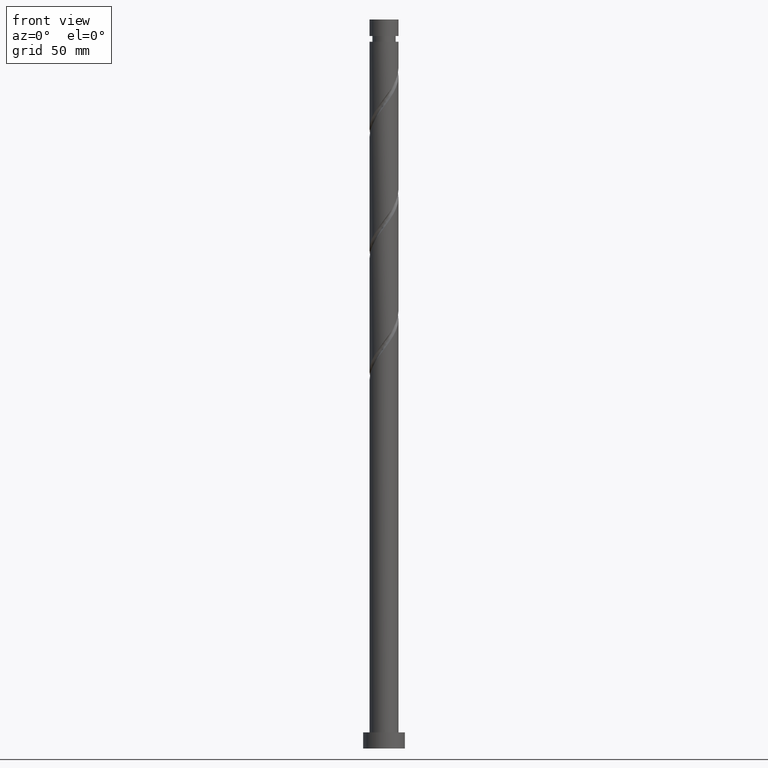
[diagram: clean part render]
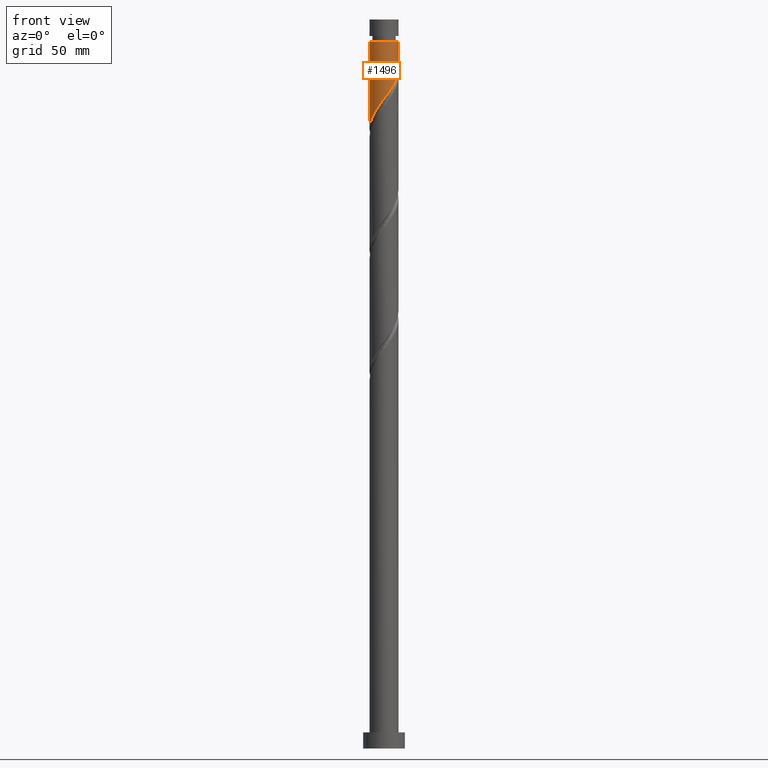
[diagram: same view with one face highlighted and labeled with its STEP entity id]
A machine part, front view. The second image highlights one B-rep face of the part: STEP entity #1496.
In plain terms, the highlighted cylindrical surface (edge-blend (fillet) strip) has radius 6.25 mm, axis along (-0, -0, -1).
Its self-contained STEP definition (entity closure, byte-faithful):
#9 = CARTESIAN_POINT ( 'NONE',  ( -6.058070402885839201, -1.536972021111190578, 269.7550190924107483 ) ) ;
#16 = VECTOR ( 'NONE', #655, 1000.000000000000000 ) ;
#24 = DIRECTION ( 'NONE',  ( -0.000000000000000000, -0.000000000000000000, -1.000000000000000000 ) ) ;
#26 = CARTESIAN_POINT ( 'NONE',  ( 6.250000000000000000, -1.343319616937364458E-15, 293.9295361703167941 ) ) ;
#33 = EDGE_CURVE ( 'NONE', #1629, #393, #1642, .T. ) ;
#127 = CARTESIAN_POINT ( 'NONE',  ( 6.250000000000000888, -0.6281486345370141944, 293.0912650913531365 ) ) ;
#152 = EDGE_CURVE ( 'NONE', #918, #1629, #1237, .T. ) ;
#167 = CARTESIAN_POINT ( 'NONE',  ( 5.984864800371902049, -1.933856053271458597, 291.3175190924106914 ) ) ;
#174 = EDGE_CURVE ( 'NONE', #918, #1806, #1099, .T. ) ;
#204 = CYLINDRICAL_SURFACE ( 'NONE', #1668, 6.250000000000000000 ) ;
#225 = ORIENTED_EDGE ( 'NONE', *, *, #174, .T. ) ;
#251 = AXIS2_PLACEMENT_3D ( 'NONE', #330, #639, #808 ) ;
#273 = CARTESIAN_POINT ( 'NONE',  ( 6.249999999999974243, 7.654042494670941829E-16, 305.3800190924107483 ) ) ;
#276 = CARTESIAN_POINT ( 'NONE',  ( -6.250000000000000888, 7.089742422724978263E-16, 267.6795361703168510 ) ) ;
#282 = CARTESIAN_POINT ( 'NONE',  ( 3.473416191767959571, -5.243451713544184045, 285.6925190924106346 ) ) ;
#303 = CARTESIAN_POINT ( 'NONE',  ( -6.250000000000000000, 7.089742422724978263E-16, 267.6795361703168510 ) ) ;
#309 = CARTESIAN_POINT ( 'NONE',  ( 6.250000000000000888, -1.343319616937364458E-15, 293.9295361703167941 ) ) ;
#330 = CARTESIAN_POINT ( 'NONE',  ( 0.000000000000000000, 0.000000000000000000, 305.3800190924107483 ) ) ;
#370 = EDGE_CURVE ( 'NONE', #1806, #393, #818, .T. ) ;
#393 = VERTEX_POINT ( 'NONE', #276 ) ;
#423 = CARTESIAN_POINT ( 'NONE',  ( -6.250000000000000000, 0.000000000000000000, 315.0000000000000000 ) ) ;
#440 = CARTESIAN_POINT ( 'NONE',  ( -3.778103783078897049, -4.978798228918796198, 275.3800190924106914 ) ) ;
#451 = CARTESIAN_POINT ( 'NONE',  ( -6.231245559048653071, -0.8543914186961926172, 268.8175190924107483 ) ) ;
#586 = CARTESIAN_POINT ( 'NONE',  ( -1.933856053271458153, -5.984864800371902049, 278.1925190924107483 ) ) ;
#597 = CARTESIAN_POINT ( 'NONE',  ( -6.248190379338377731, -0.1503894396005476530, 267.8800190924108051 ) ) ;
#616 = ORIENTED_EDGE ( 'NONE', *, *, #152, .F. ) ;
#619 = CARTESIAN_POINT ( 'NONE',  ( 2.846484407647072334, -5.564173480133604244, 284.7550190924107483 ) ) ;
#639 = DIRECTION ( 'NONE',  ( -0.000000000000000000, -0.000000000000000000, -1.000000000000000000 ) ) ;
#655 = DIRECTION ( 'NONE',  ( -0.000000000000000000, -0.000000000000000000, -1.000000000000000000 ) ) ;
#734 = CARTESIAN_POINT ( 'NONE',  ( 6.125000000000000888, -1.243734296383278037, 292.2550190924107483 ) ) ;
#745 = CARTESIAN_POINT ( 'NONE',  ( -5.243451713544183157, -3.473416191767959571, 272.5675190924107483 ) ) ;
#754 = CARTESIAN_POINT ( 'NONE',  ( -5.564173480133604244, -2.846484407647073223, 271.6300190924106914 ) ) ;
#808 = DIRECTION ( 'NONE',  ( -1.000000000000000000, 0.000000000000000000, 0.000000000000000000 ) ) ;
#818 = LINE ( 'NONE', #423, #1543 ) ;
#881 = CARTESIAN_POINT ( 'NONE',  ( 2.219552623526188206, -5.884895246723026219, 283.8175190924108620 ) ) ;
#918 = VERTEX_POINT ( 'NONE', #273 ) ;
#1035 = CARTESIAN_POINT ( 'NONE',  ( -4.339079616700646014, -4.553108168431563740, 274.4425190924107483 ) ) ;
#1044 = CARTESIAN_POINT ( 'NONE',  ( -0.5536125394950975886, -6.265135199628102392, 280.0675190924106914 ) ) ;
#1051 = FACE_OUTER_BOUND ( 'NONE', #1302, .T. ) ;
#1099 = CIRCLE ( 'NONE', #251, 6.249999999999974243 ) ;
#1174 = CARTESIAN_POINT ( 'NONE',  ( 4.013262180099761878, -4.791265665122413253, 286.6300190924106914 ) ) ;
#1185 = CARTESIAN_POINT ( 'NONE',  ( -2.575492001364303896, -5.694676544888963576, 277.2550190924108051 ) ) ;
#1198 = CARTESIAN_POINT ( 'NONE',  ( 0.8543914186961921731, -6.231245559048651295, 281.9425190924106346 ) ) ;
#1227 = CARTESIAN_POINT ( 'NONE',  ( 0.000000000000000000, 0.000000000000000000, 315.0000000000000000 ) ) ;
#1237 = LINE ( 'NONE', #1688, #16 ) ;
#1267 = CARTESIAN_POINT ( 'NONE',  ( -6.249999999999974243, 0.000000000000000000, 305.3800190924107483 ) ) ;
#1302 = EDGE_LOOP ( 'NONE', ( #616, #225, #1793, #1337 ) ) ;
#1321 = CARTESIAN_POINT ( 'NONE',  ( 5.694676544888963576, -2.575492001364304784, 290.3800190924108051 ) ) ;
#1334 = CARTESIAN_POINT ( 'NONE',  ( 0.1503894396005474032, -6.248190379338377731, 281.0050190924107483 ) ) ;
#1337 = ORIENTED_EDGE ( 'NONE', *, *, #33, .F. ) ;
#1344 = CARTESIAN_POINT ( 'NONE',  ( -5.884895246723026219, -2.219552623526188206, 270.6925190924107483 ) ) ;
#1488 = CARTESIAN_POINT ( 'NONE',  ( -4.791265665122413253, -4.013262180099761878, 273.5050190924108620 ) ) ;
#1496 = ADVANCED_FACE ( 'NONE', ( #1051 ), #204, .T. ) ;
#1507 = CARTESIAN_POINT ( 'NONE',  ( 4.553108168431563740, -4.339079616700646014, 287.5675190924108051 ) ) ;
#1543 = VECTOR ( 'NONE', #1917, 1000.000000000000000 ) ;
#1621 = CARTESIAN_POINT ( 'NONE',  ( 4.978798228918796198, -3.778103783078897493, 288.5050190924107483 ) ) ;
#1629 = VERTEX_POINT ( 'NONE', #309 ) ;
#1632 = CARTESIAN_POINT ( 'NONE',  ( 1.536972021111190356, -6.058070402885839201, 282.8800190924107483 ) ) ;
#1642 =( BOUNDED_CURVE ( )  B_SPLINE_CURVE ( 2, ( #26, #127, #734, #167, #1321, #1912, #1621, #1507, #1174, #282, #619, #881, #1632, #1198, #1334, #1044, #1924, #586, #1185, #1774, #440, #1035, #1488, #745, #754, #1344, #9, #451, #597, #1643, #303 ),
 .UNSPECIFIED., .F., .T. ) 
 B_SPLINE_CURVE_WITH_KNOTS ( ( 3, 2, 2, 2, 2, 2, 2, 2, 2, 2, 2, 2, 2, 2, 2, 3 ),
 ( 0.3045303401299220836, 0.3125000000000000000, 0.3214285714285714524, 0.3303571428571428492, 0.3392857142857143016, 0.3482142857142856984, 0.3571428571428571508, 0.3660714285714285476, 0.3750000000000000000, 0.3839285714285714524, 0.3928571428571428492, 0.4017857142857143016, 0.4107142857142856984, 0.4196428571428571508, 0.4285714285714285476, 0.4295303401299221391 ),
 .UNSPECIFIED. ) 
 CURVE ( )  GEOMETRIC_REPRESENTATION_ITEM ( )  RATIONAL_B_SPLINE_CURVE ( ( 0.9079949616361964182, 0.9039886423360596890, 0.9090909090909264911, 0.9033747362666013636, 0.9090909090909264911, 0.9033747362666013636, 0.9090909090909264911, 0.9033747362666013636, 0.9090909090909264911, 0.9033747362666013636, 0.9090909090909264911, 0.9033747362666013636, 0.9090909090909264911, 0.9033747362666013636, 0.9090909090909264911, 0.9033747362666013636, 0.9090909090909264911, 0.9033747362666013636, 0.9090909090909264911, 0.9033747362666013636, 0.9090909090909264911, 0.9033747362666013636, 0.9090909090909264911, 0.9033747362666013636, 0.9090909090909264911, 0.9033747362666013636, 0.9090909090909264911, 0.9033747362666013636, 0.9090909090909264911, 0.9084770030214681658, 0.9079949616361964182 ) ) 
 REPRESENTATION_ITEM ( '' )  );
#1643 = CARTESIAN_POINT ( 'NONE',  ( -6.250000000000001776, -0.07520560728993051780, 267.7798988585419693 ) ) ;
#1668 = AXIS2_PLACEMENT_3D ( 'NONE', #1227, #24, #1687 ) ;
#1687 = DIRECTION ( 'NONE',  ( -1.000000000000000000, 0.000000000000000000, 0.000000000000000000 ) ) ;
#1688 = CARTESIAN_POINT ( 'NONE',  ( 6.250000000000000000, 7.654042494670957606E-16, 315.0000000000000000 ) ) ;
#1774 = CARTESIAN_POINT ( 'NONE',  ( -3.217127949457150748, -5.404488289406027768, 276.3175190924106914 ) ) ;
#1793 = ORIENTED_EDGE ( 'NONE', *, *, #370, .T. ) ;
#1806 = VERTEX_POINT ( 'NONE', #1267 ) ;
#1912 = CARTESIAN_POINT ( 'NONE',  ( 5.404488289406027768, -3.217127949457150748, 289.4425190924108051 ) ) ;
#1917 = DIRECTION ( 'NONE',  ( -0.000000000000000000, -0.000000000000000000, -1.000000000000000000 ) ) ;
#1924 = CARTESIAN_POINT ( 'NONE',  ( -1.243734296383278037, -6.125000000000000888, 279.1300190924106914 ) ) ;